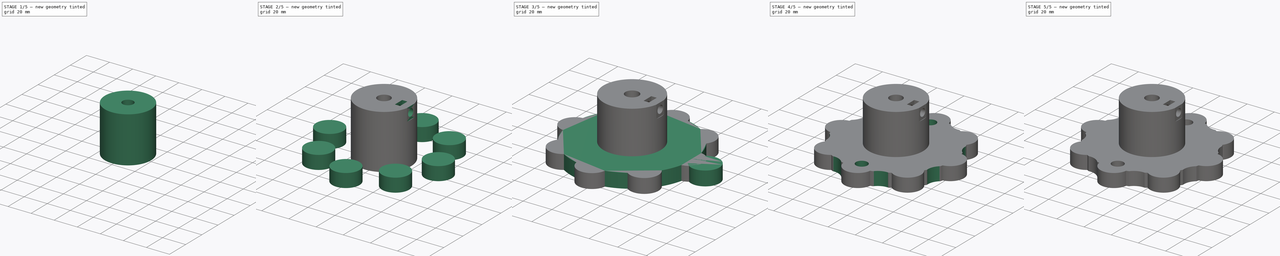
[diagram: build sequence overview — one tinted view per stage of 5, left to right]
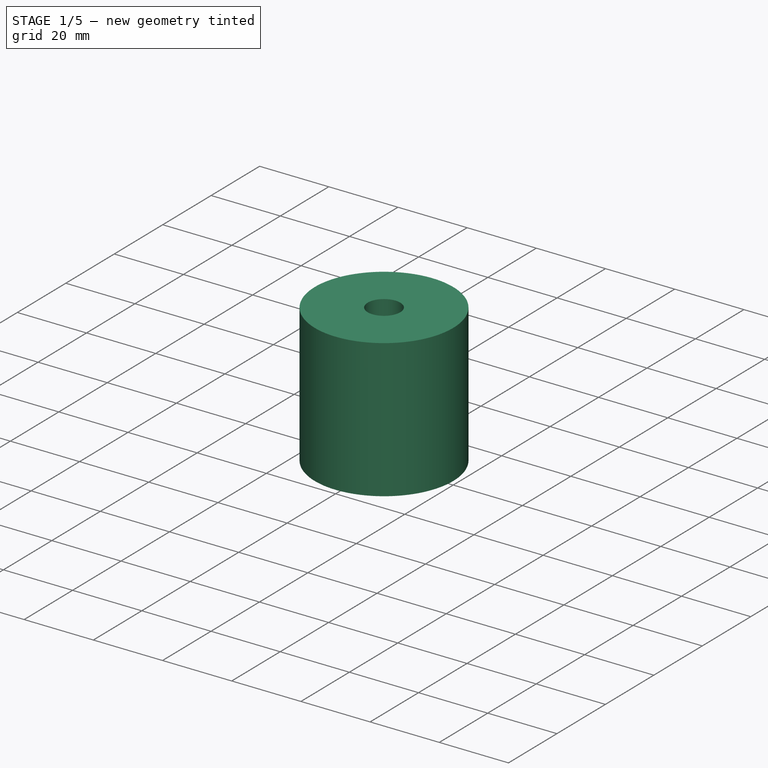
[diagram: stage 1 of 5 — iso view after this stage's code; geometry added in this stage tinted green]
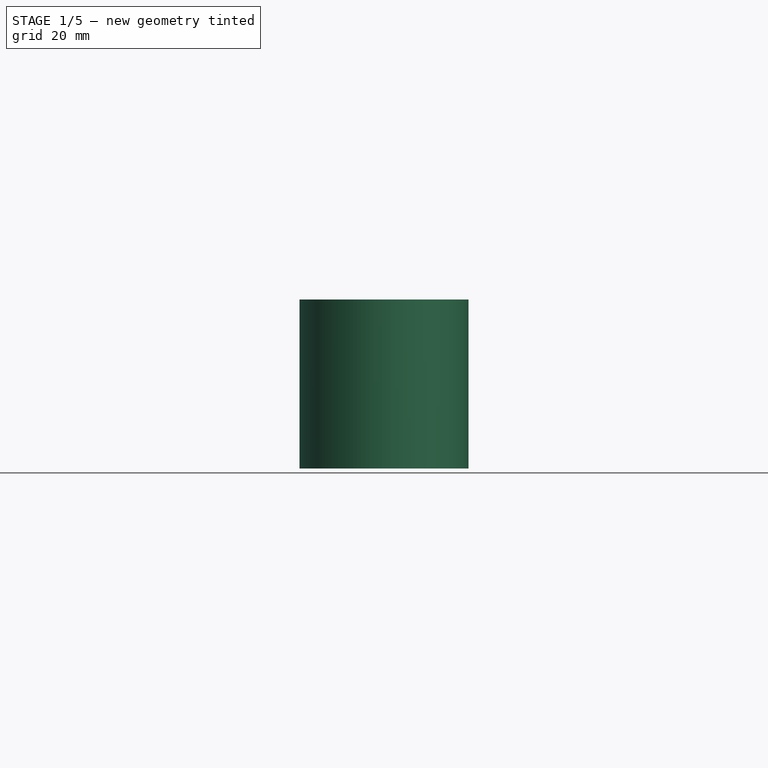
[diagram: stage 1 of 5 — front view after this stage's code; geometry added in this stage tinted green]
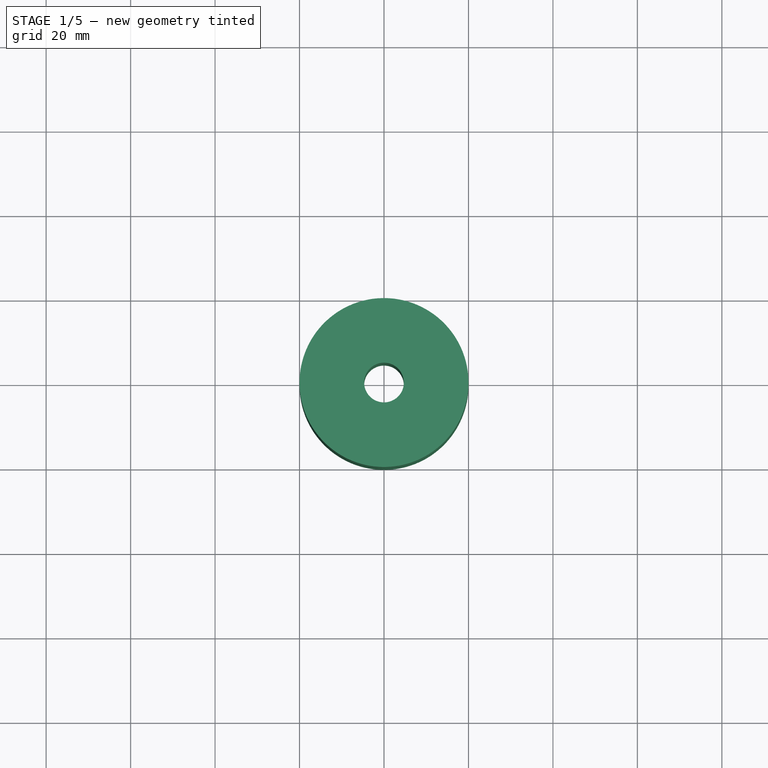
[diagram: stage 1 of 5 — top view after this stage's code; geometry added in this stage tinted green]
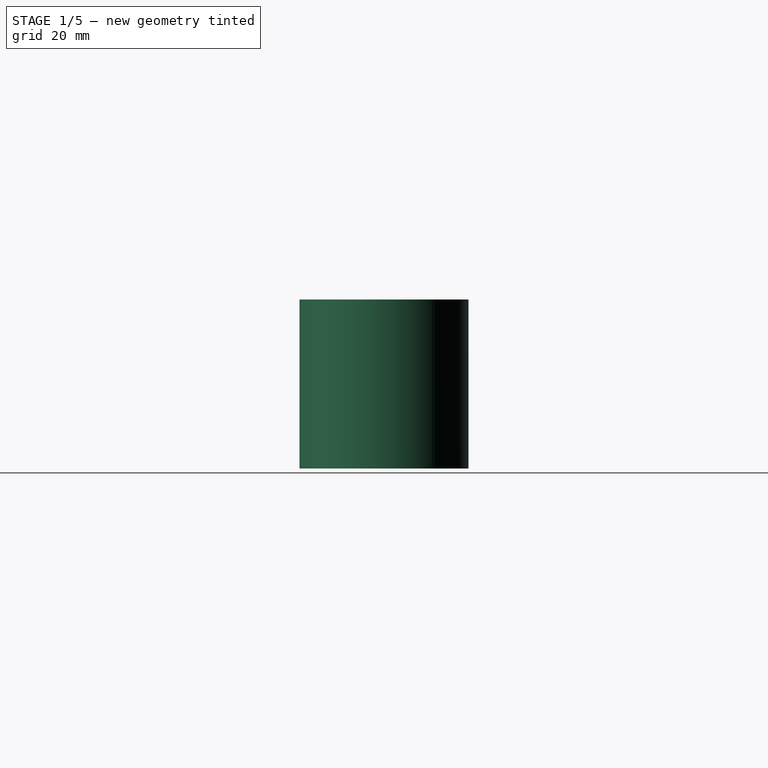
[diagram: stage 1 of 5 — right view after this stage's code; geometry added in this stage tinted green]
FCSTD DOCUMENT  (FreeCAD 0.16R5218 (Git))
Label: diseño
License: All rights reserved
LicenseURL: http://en.wikipedia.org/wiki/All_rights_reserved
objects: Part::Cylinder×5, Part::Cut×4, Part::FeaturePython×3, Sketcher::SketchObject×3, PartDesign::Pocket×3, Part::MultiFuse×2
note: 23 computed .brp shape members not serialized (recipe doc carries the construction recipe); baked Part::Feature solids carry a one-line shape summary decoded from their .brp

FEATURE [Part::Cylinder] Cylinder  label="Cilindro"
  Angle = 360
  Height = 40
  Radius = 4.7
FEATURE [Part::Cylinder] Cylinder001  label="Cilindro001"
  Angle = 360
  Height = 40
  Radius = 20
FEATURE [Part::Cut] Cut
  Base = -> Cylinder001
  Tool = -> Cylinder
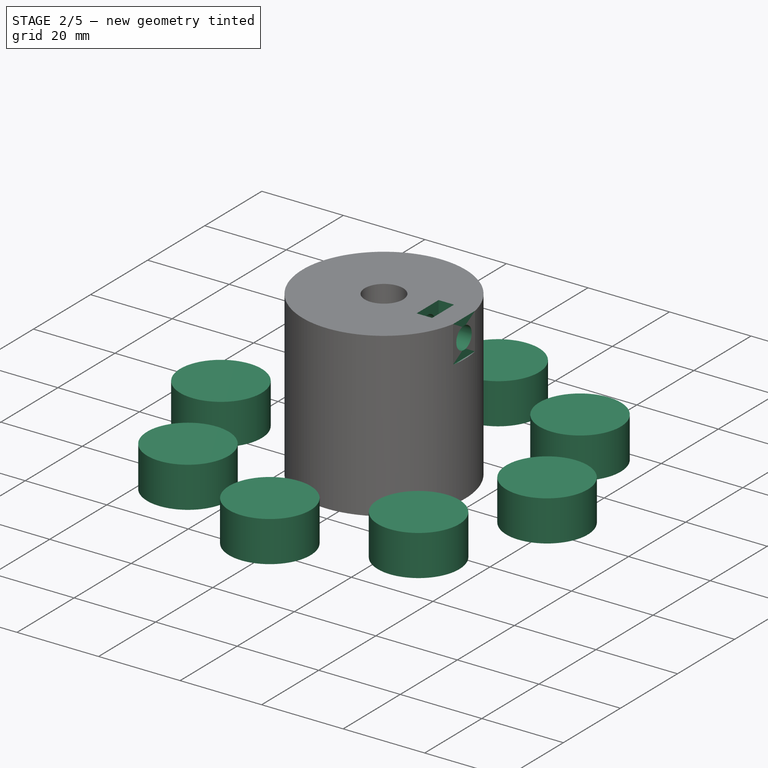
[diagram: stage 2 of 5 — iso view after this stage's code; geometry added in this stage tinted green]
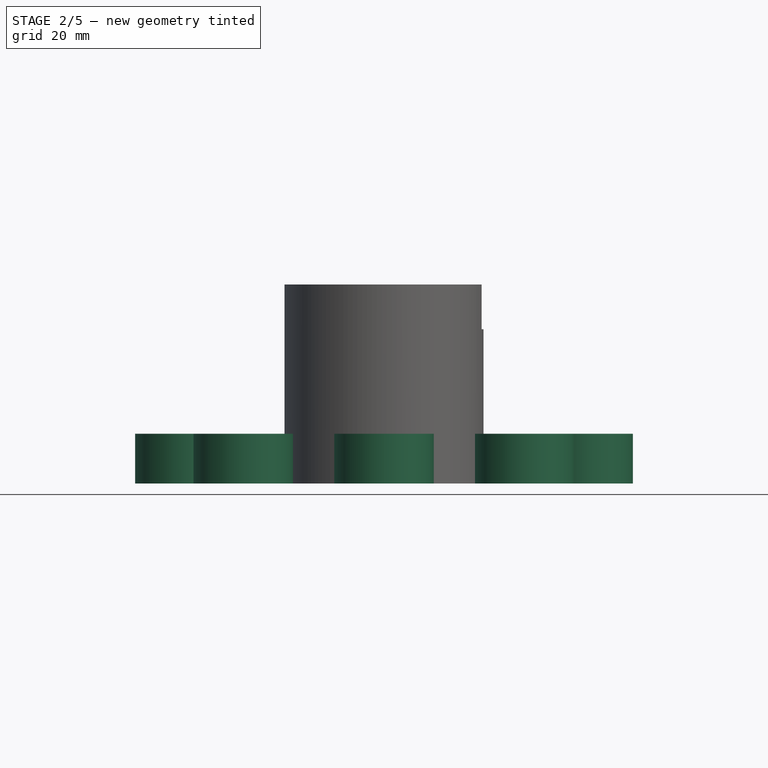
[diagram: stage 2 of 5 — front view after this stage's code; geometry added in this stage tinted green]
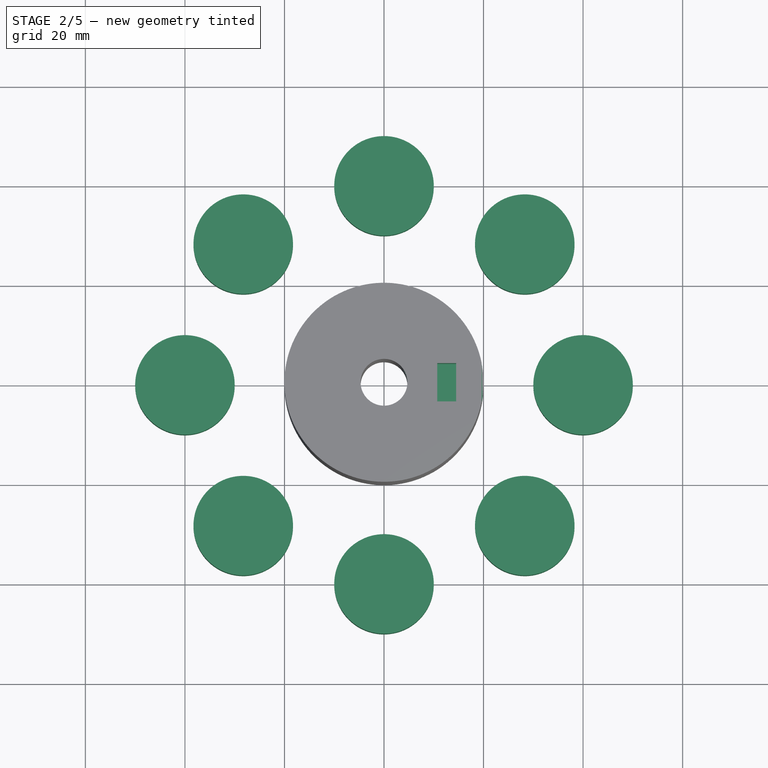
[diagram: stage 2 of 5 — top view after this stage's code; geometry added in this stage tinted green]
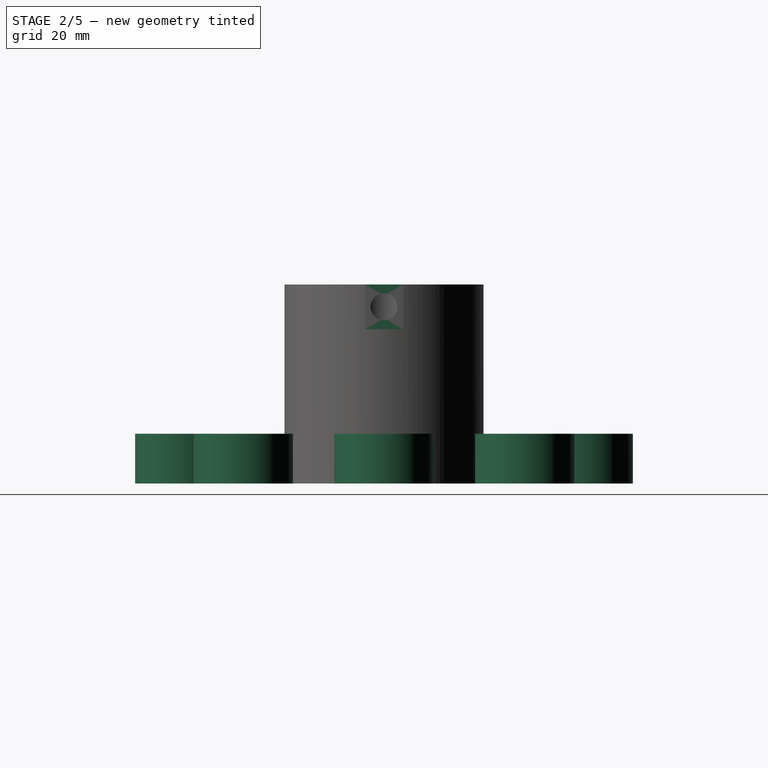
[diagram: stage 2 of 5 — right view after this stage's code; geometry added in this stage tinted green]
FEATURE [Part::Cylinder] Cylinder003  label="Cilindro003"
  Angle = 360
  Height = 10
  Placement = pos=(40,0,0) rot=(0,0,1;0rad)
  Radius = 10
FEATURE [Part::FeaturePython] Array  # Draft array (typed FeaturePython)
  Angle = 360
  ArrayType = 1
  Axis = (0,0,1)
  Base = -> Cylinder003
  Center = (0,0,0)
  Fuse = false
  IntervalAxis = (0,0,0)
  IntervalX = (1,0,0)
  IntervalY = (0,1,0)
  IntervalZ = (0,0,0)
  NumberPolar = 8
  NumberX = 2
  NumberY = 2
  NumberZ = 1
FEATURE [Sketcher::SketchObject] Sketch
  ExternalGeometry = -> [Cut]
  Placement = pos=(0,0,40) rot=(0,0,1;0rad)
  Support = -> Cut [Face2]
  sketch-geometry (11):
    g0: LineSegment StartX=10.7 StartY=3.85 StartZ=0 EndX=14.5 EndY=3.85 EndZ=0
    g1: LineSegment StartX=14.5 StartY=3.85 StartZ=0 EndX=14.5 EndY=-3.85 EndZ=0
    g2: LineSegment StartX=14.5 StartY=-3.85 StartZ=0 EndX=10.7 EndY=-3.85 EndZ=0
    g3: LineSegment StartX=10.7 StartY=-3.85 StartZ=0 EndX=10.7 EndY=3.85 EndZ=0
    g4: LineSegment [constr] StartX=10.7 StartY=3.85 StartZ=0 EndX=10.7 EndY=16.897 EndZ=0
    g5: LineSegment [constr] StartX=10.7 StartY=-3.85 StartZ=0 EndX=10.7 EndY=-16.897 EndZ=0
    g6: LineSegment StartX=19.6259 StartY=3.85 StartZ=0 EndX=22.7336 EndY=3.85 EndZ=0
    g7: LineSegment StartX=22.7336 StartY=3.85 StartZ=0 EndX=22.7336 EndY=-3.85 EndZ=0
    g8: LineSegment StartX=22.7336 StartY=-3.85 StartZ=0 EndX=19.6259 EndY=-3.85 EndZ=0
    g9: LineSegment StartX=19.6259 StartY=-3.85 StartZ=0 EndX=19.6259 EndY=3.85 EndZ=0
    g10: LineSegment [constr] StartX=4.7 StartY=19.4399 StartZ=0 EndX=4.7 EndY=-19.4399 EndZ=0
  constraints (33):
    c: Coincident(g0,g1)
    c: Coincident(g1,g2)
    c: Coincident(g2,g3)
    c: Coincident(g3,g0)
    c: Horizontal(g0)
    c: Horizontal(g2)
    c: Vertical(g1)
    c: Vertical(g3)
    c: Coincident(g4,g0)
    c: PointOnObject(g4,g-3)
    c: Vertical(g4)
    c: Coincident(g5,g2)
    c: PointOnObject(g5,g-3)
    c: Vertical(g5)
    c: Equal(g4,g5)
    c: Distance(g1) = 7.7
    c: Distance(g2) = 3.8
    c: Coincident(g6,g7)
    c: Coincident(g7,g8)
    c: Coincident(g8,g9)
    c: Coincident(g9,g6)
    c: Horizontal(g6)
    c: Horizontal(g8)
    c: Vertical(g7)
    c: Vertical(g9)
    c: PointOnObject(g6,g-3)
    c: PointOnObject(g8,g-3)
    c: Equal(g9,g1)
    c: PointOnObject(g10,g-3)
    c: PointOnObject(g10,g-3)
    c: Vertical(g10)
    c: Tangent(g-4,g10)
    c: Distance(g4,g10) = 6
FEATURE [PartDesign::Pocket] Pocket
  Length = 9
  Sketch = -> Sketch
  Type = 0
FEATURE [Sketcher::SketchObject] Sketch001
  ExternalGeometry = -> [Pocket]
  Placement = pos=(19.6259,0,0) rot=(0.57735,0.57735,0.57735;2.0944rad)
  Support = -> Pocket [Face3]
  sketch-geometry (3):
    g0: LineSegment [constr] StartX=3.85 StartY=40 StartZ=0 EndX=0 EndY=35.5 EndZ=0
    g1: LineSegment [constr] StartX=0 StartY=35.5 StartZ=0 EndX=-3.85 EndY=31 EndZ=0
    g2: Circle CenterX=0 CenterY=35.5 CenterZ=0 NormalX=0 NormalY=0 NormalZ=1 Radius=2.7
  constraints (7):
    c: Coincident(g0,g-3)
    c: Coincident(g1,g0)
    c: Coincident(g1,g-4)
    c: Equal(g1,g0)
    c: Parallel(g0,g1)
    c: Coincident(g2,g0)
    c: Radius(g2) = 2.7
FEATURE [PartDesign::Pocket] Pocket001
  Length = 18
  Sketch = -> Sketch001
  Type = 0
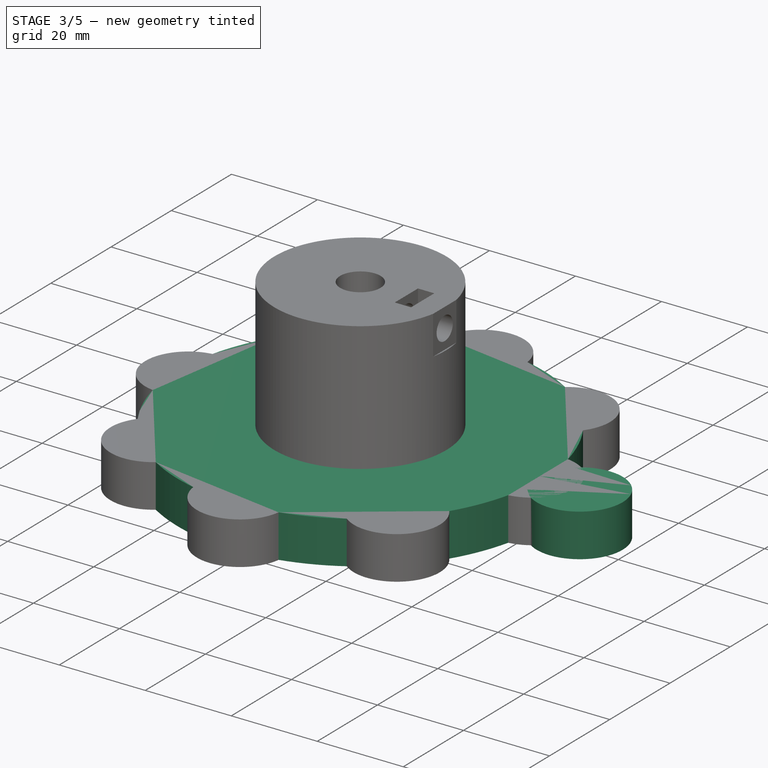
[diagram: stage 3 of 5 — iso view after this stage's code; geometry added in this stage tinted green]
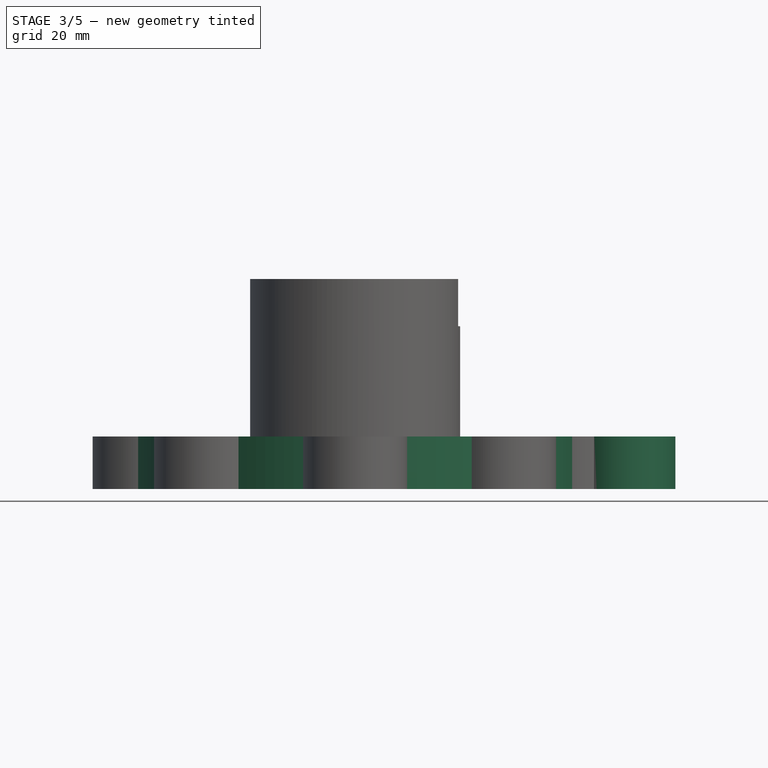
[diagram: stage 3 of 5 — front view after this stage's code; geometry added in this stage tinted green]
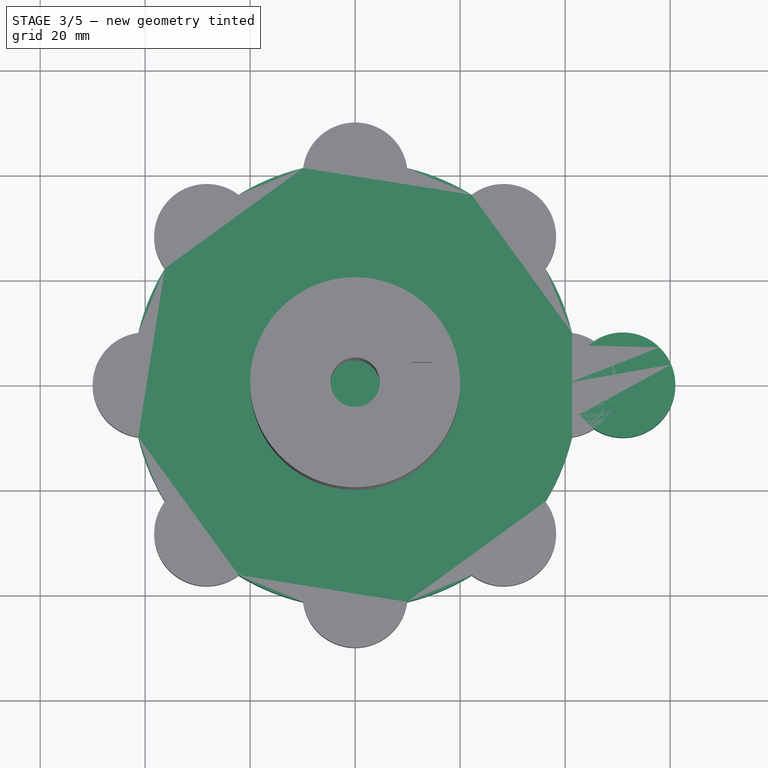
[diagram: stage 3 of 5 — top view after this stage's code; geometry added in this stage tinted green]
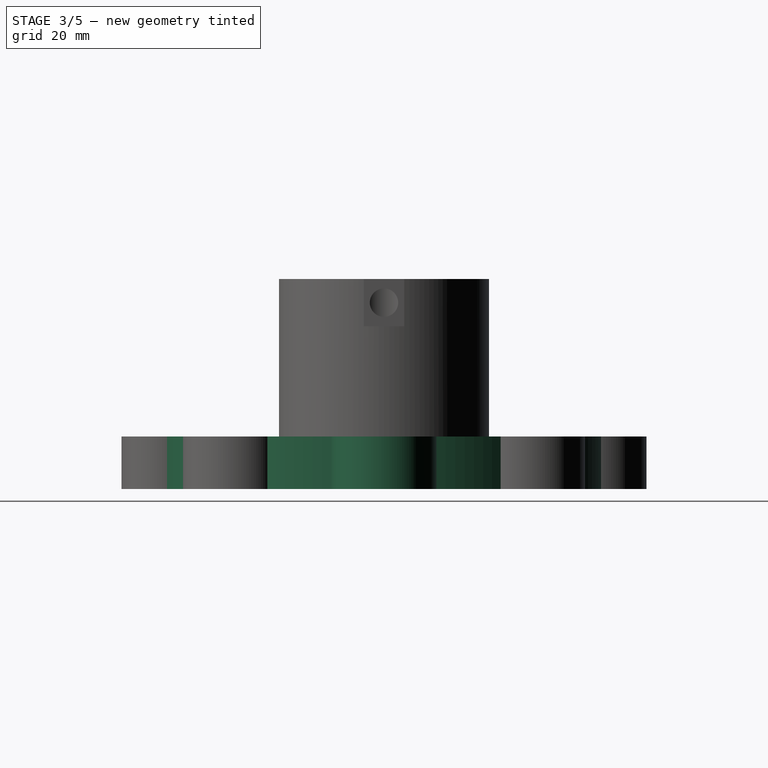
[diagram: stage 3 of 5 — right view after this stage's code; geometry added in this stage tinted green]
FEATURE [Part::Cylinder] Cylinder002  label="Cilindro002"
  Angle = 360
  Height = 10
  Radius = 42.5
FEATURE [Part::Cylinder] Cylinder004  label="Cilindro004"
  Angle = 360
  Height = 10
  Placement = pos=(51,0,0) rot=(0,0,1;0rad)
  Radius = 10
FEATURE [Part::MultiFuse] Fusion
  Shapes = -> [Cylinder002,Array]
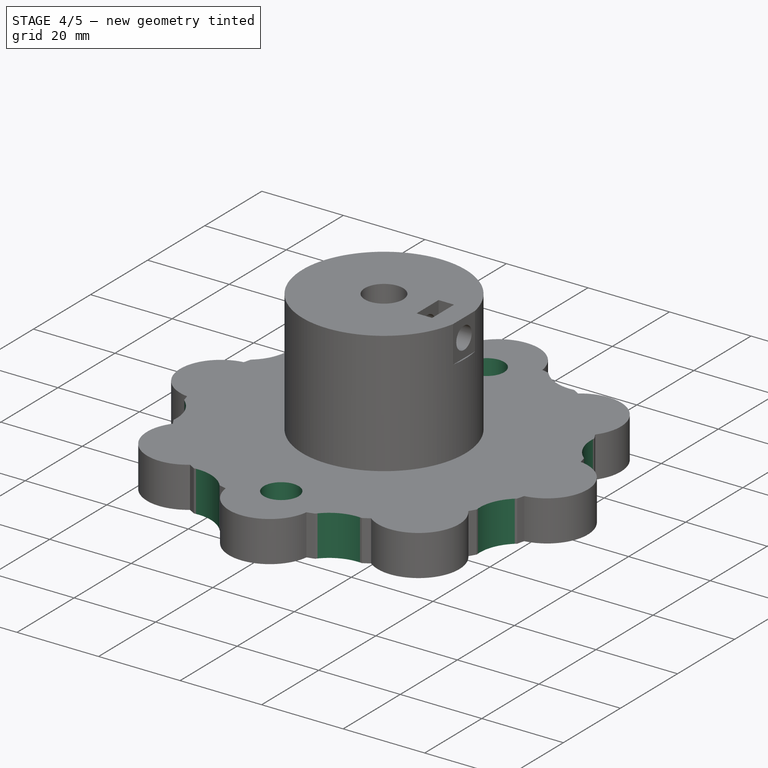
[diagram: stage 4 of 5 — iso view after this stage's code; geometry added in this stage tinted green]
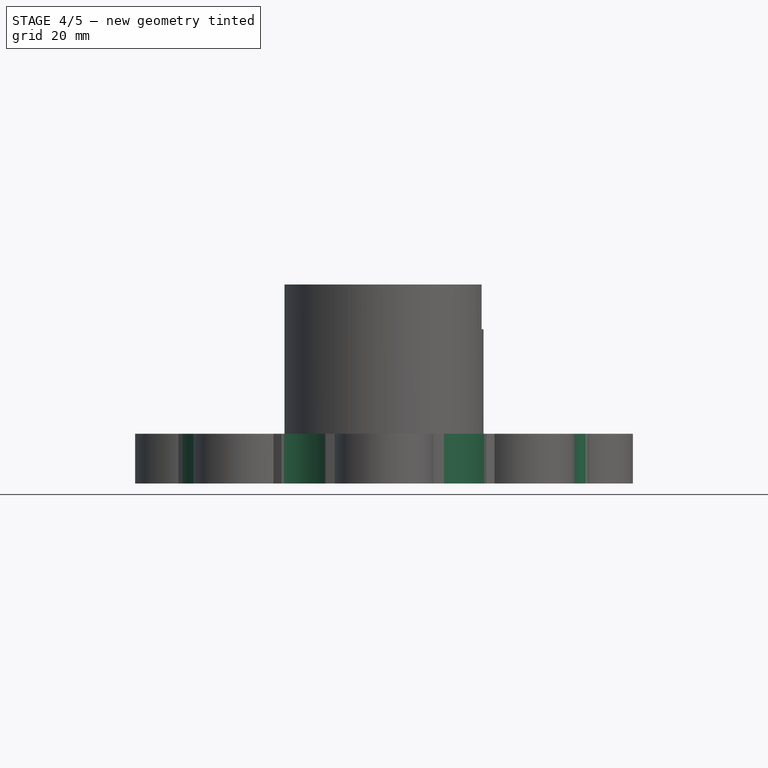
[diagram: stage 4 of 5 — front view after this stage's code; geometry added in this stage tinted green]
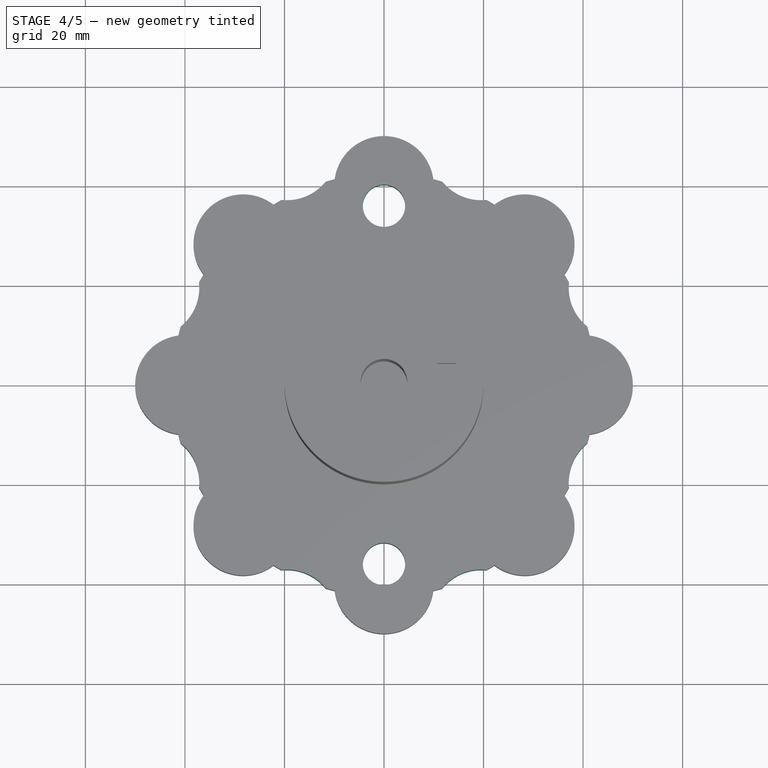
[diagram: stage 4 of 5 — top view after this stage's code; geometry added in this stage tinted green]
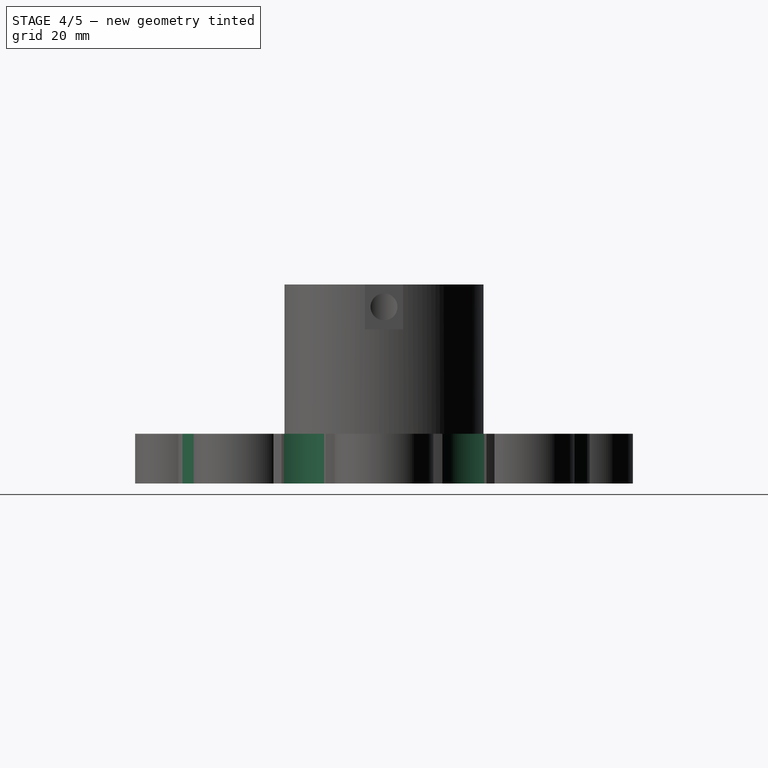
[diagram: stage 4 of 5 — right view after this stage's code; geometry added in this stage tinted green]
FEATURE [Part::FeaturePython] Array001  # Draft array (typed FeaturePython)
  Angle = 360
  ArrayType = 1
  Axis = (0,0,1)
  Base = -> Cylinder004
  Center = (0,0,0)
  Fuse = false
  IntervalAxis = (0,0,0)
  IntervalX = (1,0,0)
  IntervalY = (0,1,0)
  IntervalZ = (0,0,0)
  NumberPolar = 8
  NumberX = 2
  NumberY = 2
  NumberZ = 1
  Placement = pos=(0,0,0) rot=(0,0,-1;0.392699rad)
FEATURE [Part::Cut] Cut001
  Base = -> Fusion
  Tool = -> Array001
FEATURE [Part::MultiFuse] Fusion001
  Shapes = -> [Cut001,Pocket001]
FEATURE [Sketcher::SketchObject] Sketch002
  ExternalGeometry = -> [Fusion001]
  Placement = pos=(0,0,0) rot=(1,0,0;3.14159rad)
  Support = -> Fusion001 [Face47]
  sketch-geometry (2):
    g0: Circle CenterX=0 CenterY=36 CenterZ=0 NormalX=0 NormalY=0 NormalZ=1 Radius=4.25
    g1: Circle CenterX=0 CenterY=-36 CenterZ=0 NormalX=0 NormalY=0 NormalZ=1 Radius=4.25
  constraints (4):
    c: PointOnObject(g0,g-2)
    c: Radius(g0) = 4.25
    c: PointOnObject(g1,g-2)
    c: Equal(g0,g1)
FEATURE [PartDesign::Pocket] Pocket002
  Length = 5
  Sketch = -> Sketch002
  Type = 1
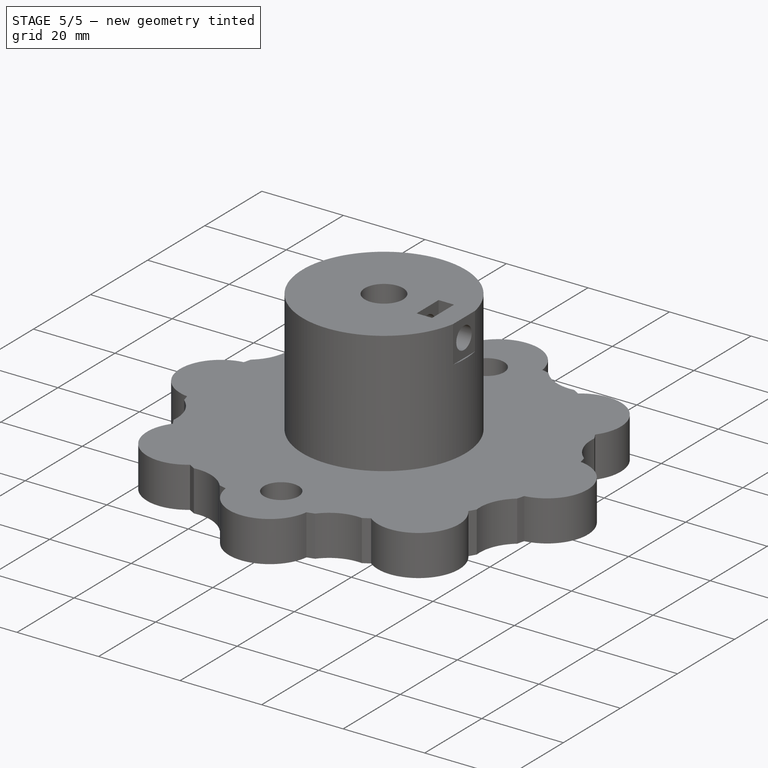
[diagram: stage 5 of 5 — iso view after this stage's code; geometry added in this stage tinted green]
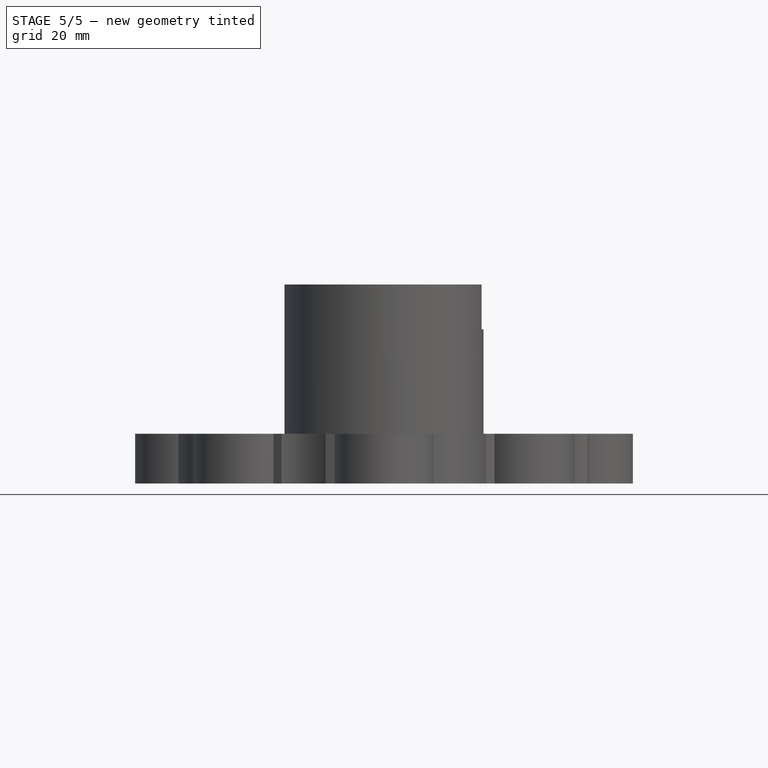
[diagram: stage 5 of 5 — front view after this stage's code; geometry added in this stage tinted green]
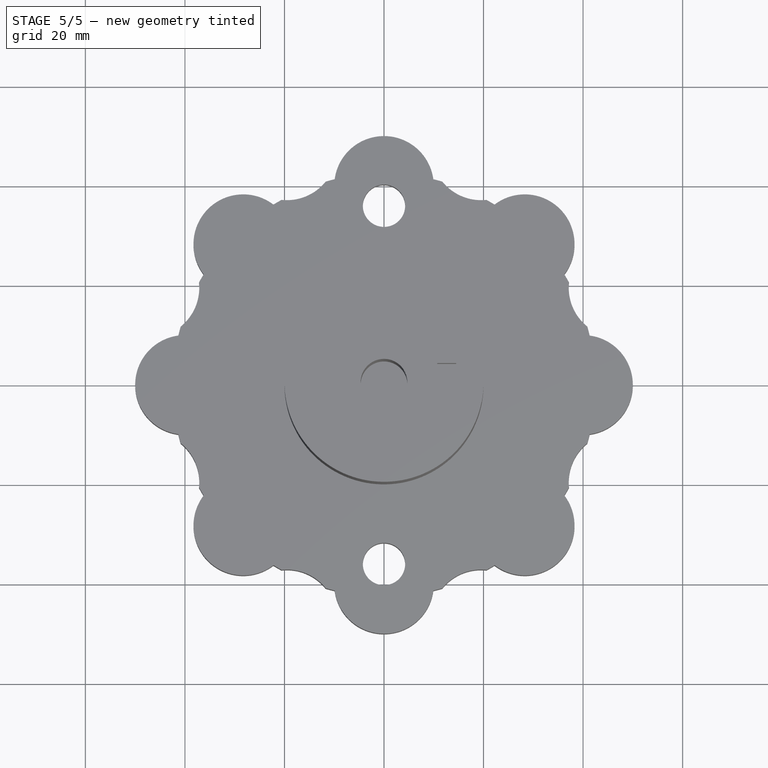
[diagram: stage 5 of 5 — top view after this stage's code; geometry added in this stage tinted green]
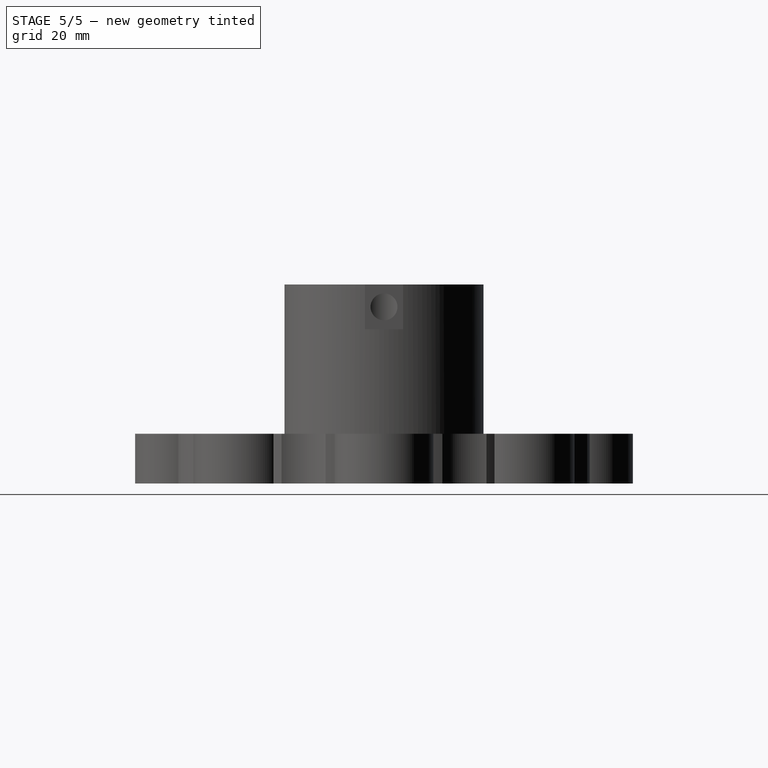
[diagram: stage 5 of 5 — right view after this stage's code; geometry added in this stage tinted green]
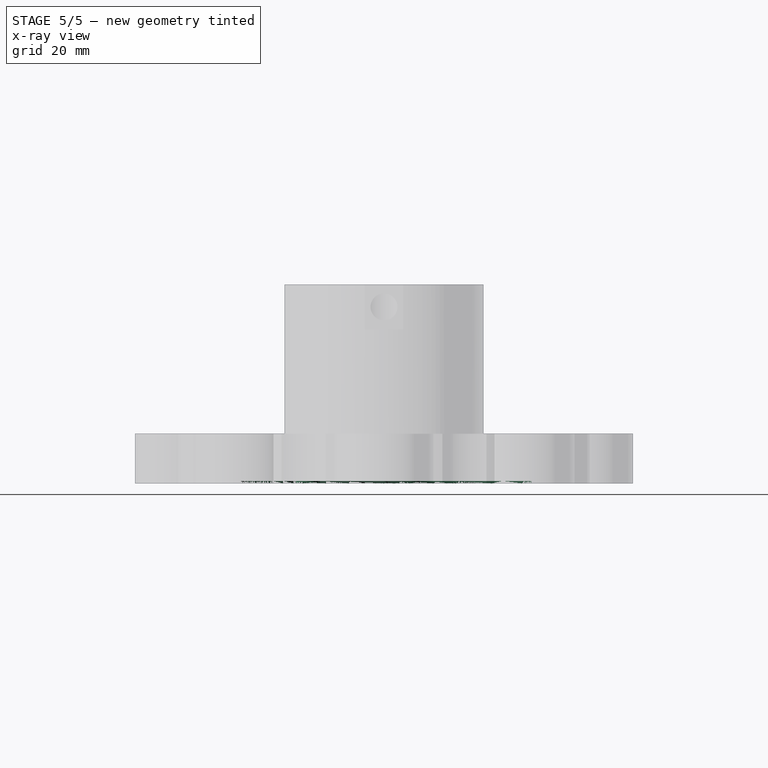
[diagram: stage 5 of 5 — x-ray composite at the right view; earlier geometry ghosted, this stage's added geometry solid]
FEATURE [Part::Cut] Cut002
  Tool = -> Fusion
FEATURE [Part::FeaturePython] Clone  label="Clone of Cut002"  # Draft clone (typed FeaturePython)
  Objects = -> [Cut002]
  Placement = pos=(22.6388,-399.29,-0.5) rot=(0,0,1;0rad)
  Scale = (0.3,0.3,1)
FEATURE [Part::Cut] Cut003
  Base = -> Pocket002
  Tool = -> Clone
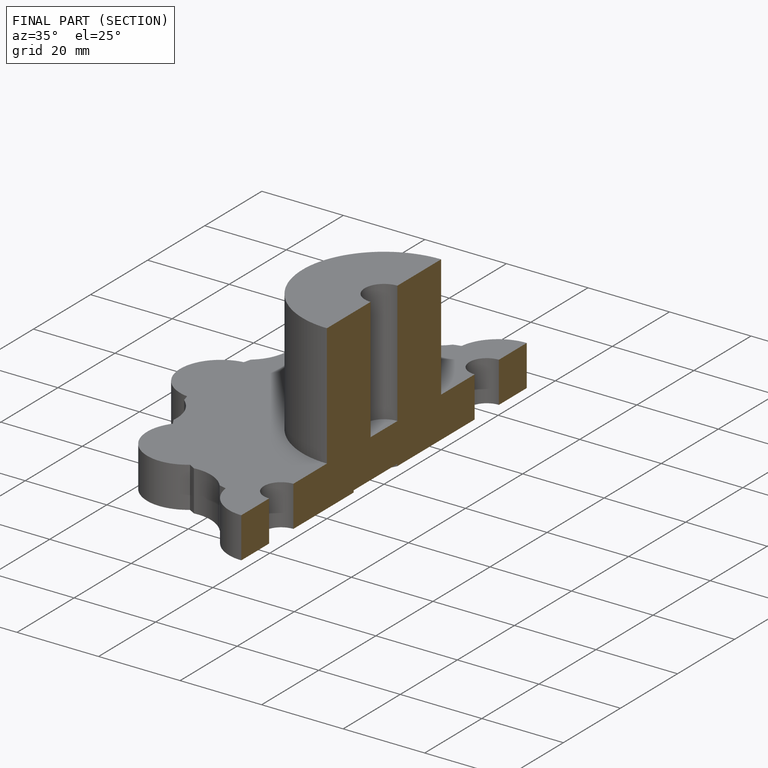
[diagram: finished part — half-section view (interior)]
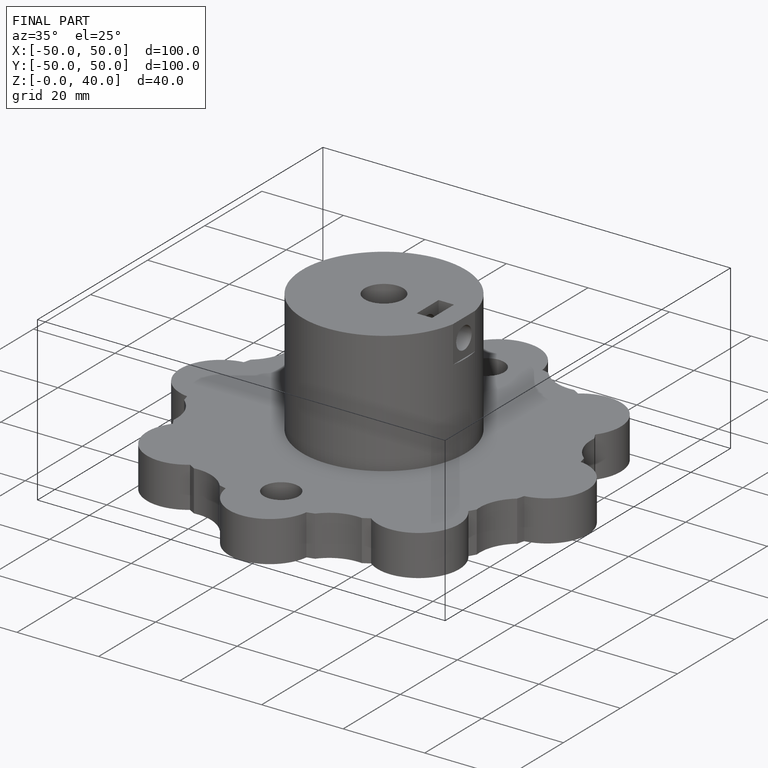
[diagram: finished part — iso view with bounding-box wireframe]
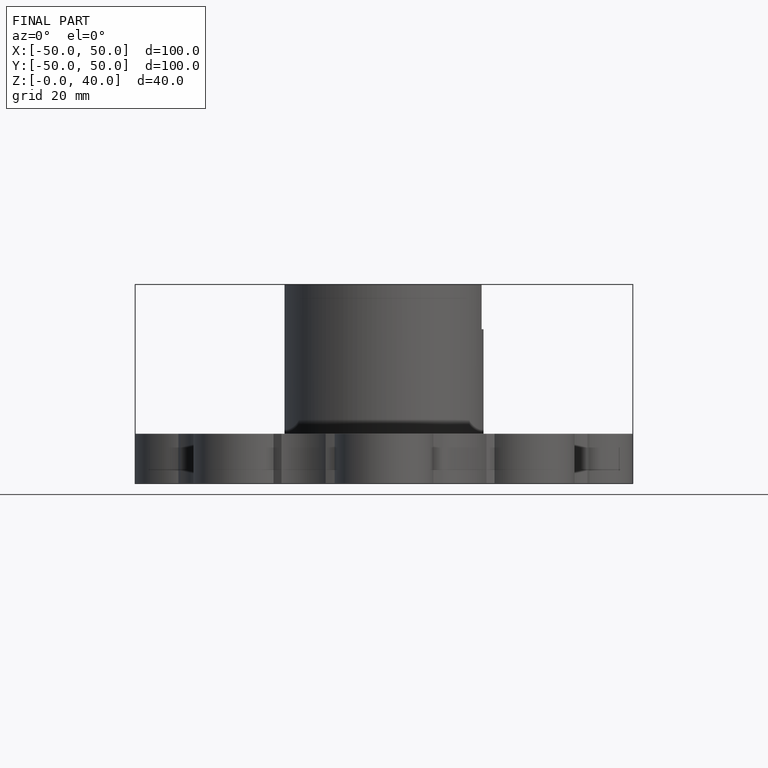
[diagram: finished part — front view with bounding-box wireframe]
